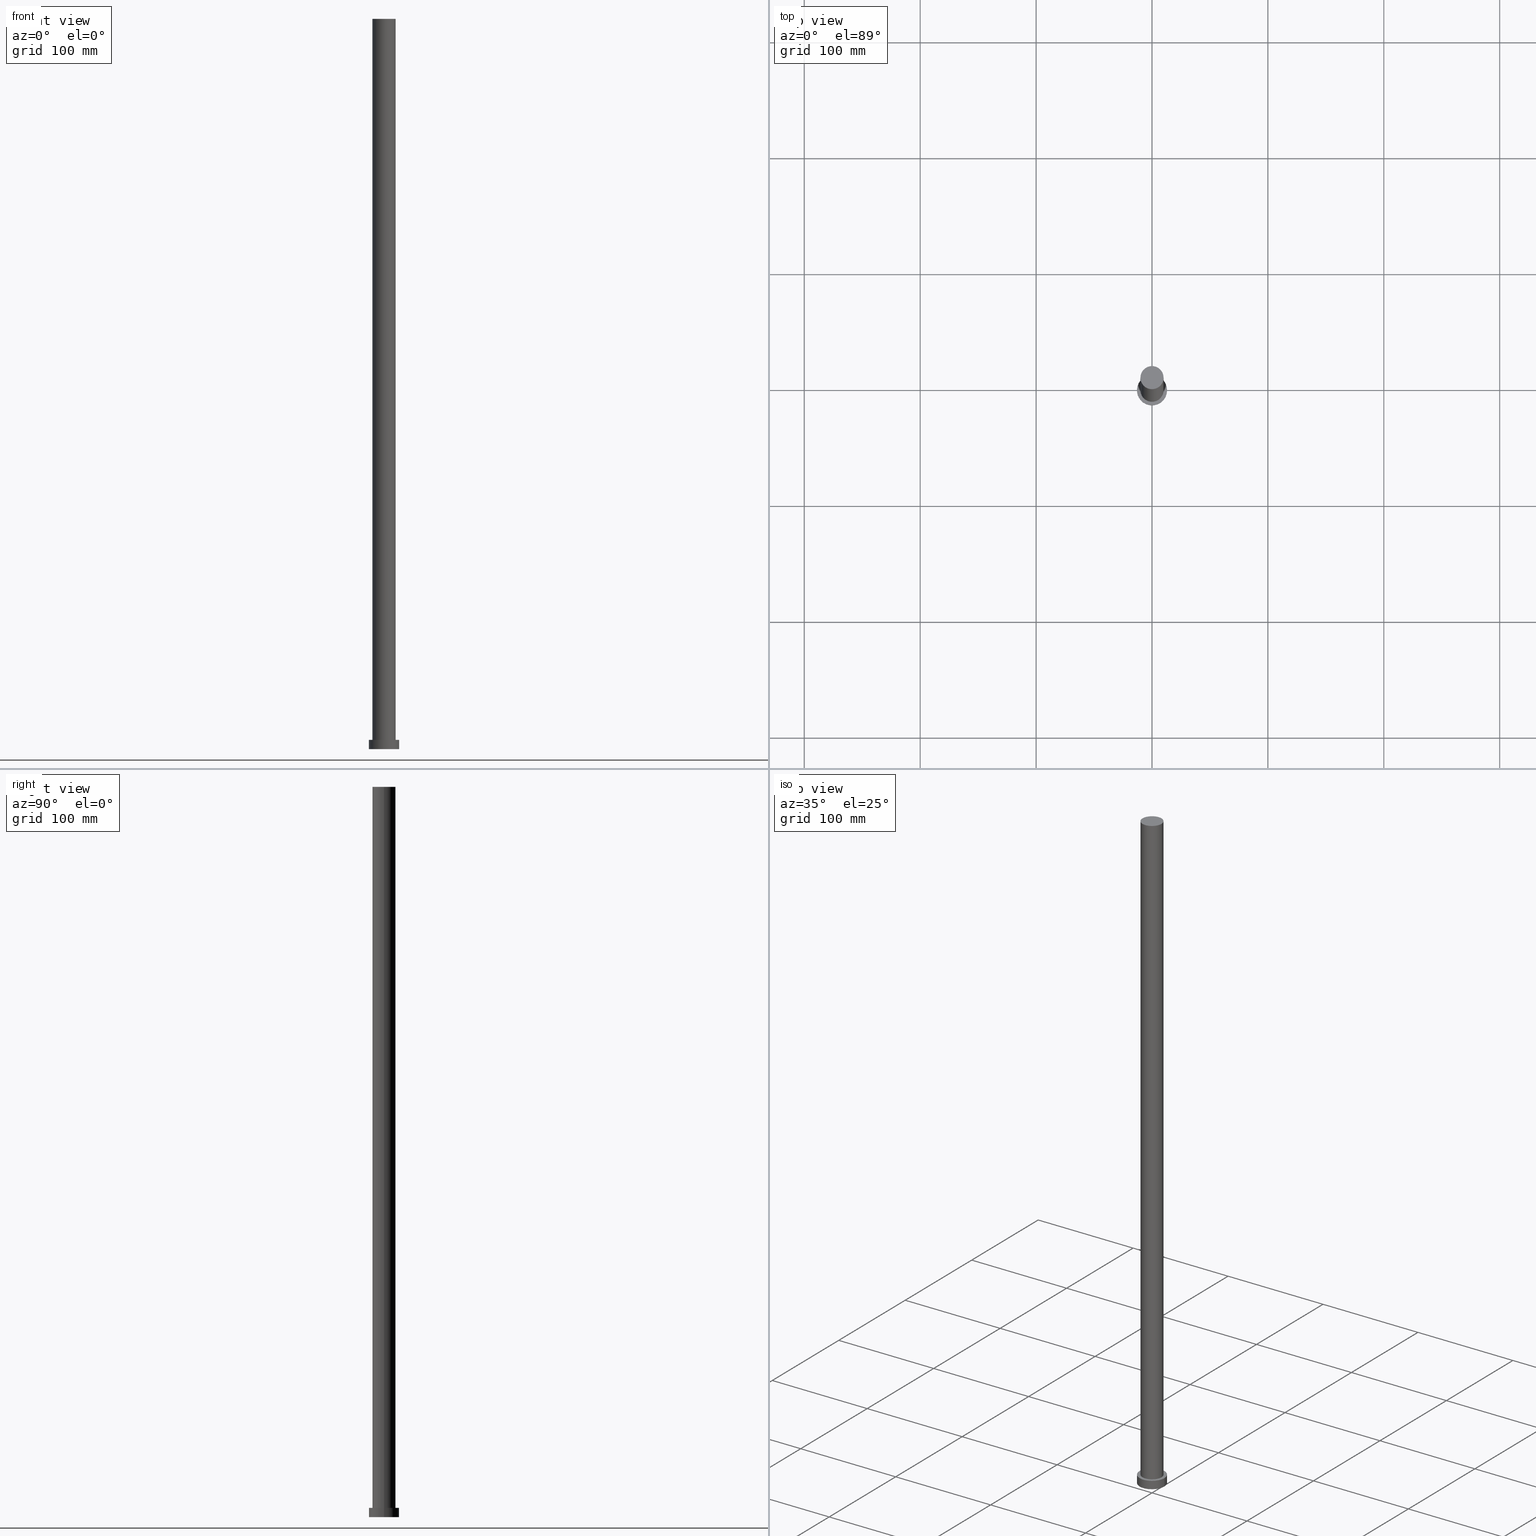
[diagram: canonical four-view strip — front | top / right | iso, engineering-drawing reading convention]
A machine part, canonical four-view strip (front | top / right | iso — engineering-drawing reading convention). The complete STEP part file that produces these views, byte-faithful:
ISO-10303-21;
HEADER;
FILE_DESCRIPTION (( 'STEP AP203' ),
    '1' );
FILE_NAME ('07cb.STEP',
    '2023-02-13T07:33:10',
    ( '' ),
    ( '' ),
    'SwSTEP 2.0',
    'SolidWorks 2019',
    '' );
FILE_SCHEMA (( 'CONFIG_CONTROL_DESIGN' ));
ENDSEC;

DATA;
#1 = FACE_OUTER_BOUND ( 'NONE', #211, .T. ) ;
#2 = PERSON_AND_ORGANIZATION ( #46, #255 ) ;
#3 = EDGE_CURVE ( 'NONE', #156, #189, #159, .T. ) ;
#4 = EDGE_LOOP ( 'NONE', ( #96, #117 ) ) ;
#5 = CIRCLE ( 'NONE', #190, 13.00000000000000178 ) ;
#6 = PERSON_AND_ORGANIZATION_ROLE ( 'creator' ) ;
#7 = CC_DESIGN_PERSON_AND_ORGANIZATION_ASSIGNMENT ( #98, #242, ( #210 ) ) ;
#8 = APPROVAL_DATE_TIME ( #37, #252 ) ;
#9 = DIRECTION ( 'NONE',  ( 1.000000000000000000, 0.000000000000000000, 0.000000000000000000 ) ) ;
#10 = PLANE ( 'NONE',  #198 ) ;
#11 = ADVANCED_FACE ( 'NONE', ( #60 ), #78, .T. ) ;
#12 = VECTOR ( 'NONE', #28, 1000.000000000000000 ) ;
#13 = CARTESIAN_POINT ( 'NONE',  ( 0.000000000000000000, 0.000000000000000000, 630.0000000000000000 ) ) ;
#14 = DATE_AND_TIME ( #171, #168 ) ;
#15 = ORIENTED_EDGE ( 'NONE', *, *, #87, .F. ) ;
#16 = LOCAL_TIME ( 8, 33, 10.00000000000000000, #51 ) ;
#17 = ORIENTED_EDGE ( 'NONE', *, *, #214, .F. ) ;
#18 = CC_DESIGN_PERSON_AND_ORGANIZATION_ASSIGNMENT ( #197, #158, ( #80 ) ) ;
#19 = DIRECTION ( 'NONE',  ( -0.000000000000000000, -0.000000000000000000, -1.000000000000000000 ) ) ;
#20 = ORIENTED_EDGE ( 'NONE', *, *, #57, .F. ) ;
#21 = MECHANICAL_CONTEXT ( 'NONE', #91, 'mechanical' ) ;
#22 = VERTEX_POINT ( 'NONE', #41 ) ;
#23 = LINE ( 'NONE', #100, #12 ) ;
#24 = CC_DESIGN_APPROVAL ( #196, ( #80 ) ) ;
#25 = SECURITY_CLASSIFICATION_LEVEL ( 'unclassified' ) ;
#26 = CARTESIAN_POINT ( 'NONE',  ( 0.000000000000000000, 0.000000000000000000, 630.0000000000000000 ) ) ;
#27 = APPROVAL_ROLE ( '' ) ;
#28 = DIRECTION ( 'NONE',  ( -0.000000000000000000, -0.000000000000000000, -1.000000000000000000 ) ) ;
#29 = CARTESIAN_POINT ( 'NONE',  ( 0.000000000000000000, 0.000000000000000000, 0.000000000000000000 ) ) ;
#30 = COORDINATED_UNIVERSAL_TIME_OFFSET ( 1, 0, .AHEAD. ) ;
#31 = CARTESIAN_POINT ( 'NONE',  ( -10.00000000000000000, 0.000000000000000000, 8.000000000000000000 ) ) ;
#32 =( GEOMETRIC_REPRESENTATION_CONTEXT ( 3 ) GLOBAL_UNCERTAINTY_ASSIGNED_CONTEXT ( ( #97 ) ) GLOBAL_UNIT_ASSIGNED_CONTEXT ( ( #222, #195, #82 ) ) REPRESENTATION_CONTEXT ( 'NONE', 'WORKASPACE' ) );
#33 = APPROVAL ( #209, 'NEUR�EN�' ) ;
#34 = APPLICATION_CONTEXT ( 'configuration controlled 3d designs of mechanical parts and assemblies' ) ;
#35 = DIRECTION ( 'NONE',  ( -0.000000000000000000, -0.000000000000000000, -1.000000000000000000 ) ) ;
#36 = DIRECTION ( 'NONE',  ( 0.000000000000000000, 0.000000000000000000, 1.000000000000000000 ) ) ;
#37 = DATE_AND_TIME ( #203, #204 ) ;
#38 = PERSON_AND_ORGANIZATION ( #46, #255 ) ;
#39 = CC_DESIGN_PERSON_AND_ORGANIZATION_ASSIGNMENT ( #2, #157, ( #111 ) ) ;
#40 = AXIS2_PLACEMENT_3D ( 'NONE', #128, #36, #220 ) ;
#41 = CARTESIAN_POINT ( 'NONE',  ( 13.00000000000000178, 1.592040838891559293E-15, 0.000000000000000000 ) ) ;
#42 = DIRECTION ( 'NONE',  ( 0.000000000000000000, 0.000000000000000000, 1.000000000000000000 ) ) ;
#43 = EDGE_LOOP ( 'NONE', ( #15, #17, #253, #93 ) ) ;
#44 = APPROVAL_PERSON_ORGANIZATION ( #38, #33, #188 ) ;
#45 = CARTESIAN_POINT ( 'NONE',  ( -10.00000000000000000, 0.000000000000000000, 630.0000000000000000 ) ) ;
#46 = PERSON ( 'NEUR�EN�', 'NEUR�EN�', 'NEUR�EN�', ('NEUR�EN�'), ('NEUR�EN�'), ('NEUR�EN�') ) ;
#47 = DATE_AND_TIME ( #101, #208 ) ;
#48 = ADVANCED_FACE ( 'NONE', ( #178 ), #61, .T. ) ;
#49 = CIRCLE ( 'NONE', #68, 13.00000000000000178 ) ;
#50 = PERSON_AND_ORGANIZATION ( #46, #255 ) ;
#51 = COORDINATED_UNIVERSAL_TIME_OFFSET ( 1, 0, .AHEAD. ) ;
#52 = DIRECTION ( 'NONE',  ( -0.000000000000000000, -0.000000000000000000, -1.000000000000000000 ) ) ;
#53 = LINE ( 'NONE', #202, #103 ) ;
#54 = AXIS2_PLACEMENT_3D ( 'NONE', #227, #55, #167 ) ;
#55 = DIRECTION ( 'NONE',  ( 0.000000000000000000, 0.000000000000000000, 1.000000000000000000 ) ) ;
#56 = ADVANCED_FACE ( 'NONE', ( #1 ), #94, .T. ) ;
#57 = EDGE_CURVE ( 'NONE', #254, #136, #95, .T. ) ;
#58 = ORIENTED_EDGE ( 'NONE', *, *, #3, .T. ) ;
#59 = EDGE_LOOP ( 'NONE', ( #73, #193 ) ) ;
#60 = FACE_OUTER_BOUND ( 'NONE', #43, .T. ) ;
#61 = PLANE ( 'NONE',  #146 ) ;
#62 = LOCAL_TIME ( 8, 33, 10.00000000000000000, #89 ) ;
#63 = EDGE_CURVE ( 'NONE', #189, #156, #228, .T. ) ;
#64 = DIRECTION ( 'NONE',  ( -0.000000000000000000, -0.000000000000000000, -1.000000000000000000 ) ) ;
#65 = AXIS2_PLACEMENT_3D ( 'NONE', #26, #102, #142 ) ;
#66 = FACE_BOUND ( 'NONE', #116, .T. ) ;
#67 = CYLINDRICAL_SURFACE ( 'NONE', #65, 10.00000000000000000 ) ;
#68 = AXIS2_PLACEMENT_3D ( 'NONE', #104, #180, #127 ) ;
#69 = CARTESIAN_POINT ( 'NONE',  ( 0.000000000000000000, 0.000000000000000000, 0.000000000000000000 ) ) ;
#70 = ADVANCED_FACE ( 'NONE', ( #66, #143 ), #10, .T. ) ;
#71 = PRODUCT_DEFINITION_SHAPE ( 'NONE', 'NONE',  #141 ) ;
#72 = DIRECTION ( 'NONE',  ( 0.000000000000000000, 0.000000000000000000, 1.000000000000000000 ) ) ;
#73 = ORIENTED_EDGE ( 'NONE', *, *, #214, .T. ) ;
#74 = ORIENTED_EDGE ( 'NONE', *, *, #90, .T. ) ;
#75 = VERTEX_POINT ( 'NONE', #226 ) ;
#76 = ORIENTED_EDGE ( 'NONE', *, *, #90, .F. ) ;
#77 = SHAPE_DEFINITION_REPRESENTATION ( #71, #133 ) ;
#78 = CYLINDRICAL_SURFACE ( 'NONE', #139, 13.00000000000000178 ) ;
#79 = APPROVAL_DATE_TIME ( #47, #196 ) ;
#80 = PRODUCT_DEFINITION_FORMATION_WITH_SPECIFIED_SOURCE ( 'LIBOVOLN�', '', #111, .NOT_KNOWN. ) ;
#81 = PERSON_AND_ORGANIZATION_ROLE ( 'creator' ) ;
#82 =( NAMED_UNIT ( * ) SI_UNIT ( $, .STERADIAN. ) SOLID_ANGLE_UNIT ( ) );
#83 = AXIS2_PLACEMENT_3D ( 'NONE', #122, #123, #140 ) ;
#84 = CARTESIAN_POINT ( 'NONE',  ( 0.000000000000000000, 0.000000000000000000, 0.000000000000000000 ) ) ;
#85 = FACE_OUTER_BOUND ( 'NONE', #177, .T. ) ;
#86 = DIRECTION ( 'NONE',  ( 0.000000000000000000, 0.000000000000000000, 1.000000000000000000 ) ) ;
#87 = EDGE_CURVE ( 'NONE', #173, #22, #53, .T. ) ;
#88 = DIRECTION ( 'NONE',  ( 0.000000000000000000, 0.000000000000000000, 1.000000000000000000 ) ) ;
#89 = COORDINATED_UNIVERSAL_TIME_OFFSET ( 1, 0, .AHEAD. ) ;
#90 = EDGE_CURVE ( 'NONE', #136, #254, #109, .T. ) ;
#91 = APPLICATION_CONTEXT ( 'configuration controlled 3d designs of mechanical parts and assemblies' ) ;
#92 = ORIENTED_EDGE ( 'NONE', *, *, #172, .T. ) ;
#93 = ORIENTED_EDGE ( 'NONE', *, *, #129, .T. ) ;
#94 = CYLINDRICAL_SURFACE ( 'NONE', #126, 13.00000000000000178 ) ;
#95 = CIRCLE ( 'NONE', #83, 10.00000000000000000 ) ;
#96 = ORIENTED_EDGE ( 'NONE', *, *, #129, .F. ) ;
#97 = UNCERTAINTY_MEASURE_WITH_UNIT (LENGTH_MEASURE( 1.000000000000000082E-05 ), #222, 'distance_accuracy_value', 'NONE');
#98 = PERSON_AND_ORGANIZATION ( #46, #255 ) ;
#99 = ORIENTED_EDGE ( 'NONE', *, *, #166, .T. ) ;
#100 = CARTESIAN_POINT ( 'NONE',  ( -13.00000000000000178, 0.000000000000000000, 8.000000000000000000 ) ) ;
#101 = CALENDAR_DATE ( 2023, 13, 2 ) ;
#102 = DIRECTION ( 'NONE',  ( -0.000000000000000000, -0.000000000000000000, -1.000000000000000000 ) ) ;
#103 = VECTOR ( 'NONE', #105, 1000.000000000000000 ) ;
#104 = CARTESIAN_POINT ( 'NONE',  ( 0.000000000000000000, 0.000000000000000000, 8.000000000000000000 ) ) ;
#105 = DIRECTION ( 'NONE',  ( -0.000000000000000000, -0.000000000000000000, -1.000000000000000000 ) ) ;
#106 = CYLINDRICAL_SURFACE ( 'NONE', #112, 10.00000000000000000 ) ;
#107 = EDGE_CURVE ( 'NONE', #22, #75, #5, .T. ) ;
#108 = FACE_OUTER_BOUND ( 'NONE', #4, .T. ) ;
#109 = CIRCLE ( 'NONE', #247, 10.00000000000000000 ) ;
#110 = CARTESIAN_POINT ( 'NONE',  ( 0.000000000000000000, 0.000000000000000000, 0.000000000000000000 ) ) ;
#111 = PRODUCT ( '07cb', '07cb', '', ( #21 ) ) ;
#112 = AXIS2_PLACEMENT_3D ( 'NONE', #245, #182, #219 ) ;
#113 = ORIENTED_EDGE ( 'NONE', *, *, #166, .F. ) ;
#114 = EDGE_LOOP ( 'NONE', ( #113, #76, #92, #115 ) ) ;
#115 = ORIENTED_EDGE ( 'NONE', *, *, #63, .T. ) ;
#116 = EDGE_LOOP ( 'NONE', ( #251, #174 ) ) ;
#117 = ORIENTED_EDGE ( 'NONE', *, *, #107, .F. ) ;
#118 = ADVANCED_FACE ( 'NONE', ( #108 ), #207, .F. ) ;
#119 = PERSON_AND_ORGANIZATION ( #46, #255 ) ;
#120 = COORDINATED_UNIVERSAL_TIME_OFFSET ( 1, 0, .AHEAD. ) ;
#121 = PERSON_AND_ORGANIZATION ( #46, #255 ) ;
#122 = CARTESIAN_POINT ( 'NONE',  ( 0.000000000000000000, 0.000000000000000000, 630.0000000000000000 ) ) ;
#123 = DIRECTION ( 'NONE',  ( 0.000000000000000000, 0.000000000000000000, 1.000000000000000000 ) ) ;
#124 = DATE_AND_TIME ( #221, #16 ) ;
#125 = CARTESIAN_POINT ( 'NONE',  ( 13.00000000000000178, 1.592040838891559293E-15, 8.000000000000000000 ) ) ;
#126 = AXIS2_PLACEMENT_3D ( 'NONE', #191, #64, #244 ) ;
#127 = DIRECTION ( 'NONE',  ( 1.000000000000000000, 0.000000000000000000, 0.000000000000000000 ) ) ;
#128 = CARTESIAN_POINT ( 'NONE',  ( 0.000000000000000000, 0.000000000000000000, 8.000000000000000000 ) ) ;
#129 = EDGE_CURVE ( 'NONE', #75, #22, #153, .T. ) ;
#130 = COORDINATED_UNIVERSAL_TIME_OFFSET ( 1, 0, .AHEAD. ) ;
#131 = DIRECTION ( 'NONE',  ( 1.000000000000000000, 0.000000000000000000, 0.000000000000000000 ) ) ;
#132 = VECTOR ( 'NONE', #52, 1000.000000000000000 ) ;
#133 = ADVANCED_BREP_SHAPE_REPRESENTATION ( '07cb', ( #224, #241 ), #32 ) ;
#134 = ORIENTED_EDGE ( 'NONE', *, *, #187, .F. ) ;
#135 = CIRCLE ( 'NONE', #54, 13.00000000000000178 ) ;
#136 = VERTEX_POINT ( 'NONE', #145 ) ;
#137 = ORIENTED_EDGE ( 'NONE', *, *, #172, .F. ) ;
#138 = CARTESIAN_POINT ( 'NONE',  ( 0.000000000000000000, 0.000000000000000000, 8.000000000000000000 ) ) ;
#139 = AXIS2_PLACEMENT_3D ( 'NONE', #138, #19, #235 ) ;
#140 = DIRECTION ( 'NONE',  ( 1.000000000000000000, 0.000000000000000000, 0.000000000000000000 ) ) ;
#141 = PRODUCT_DEFINITION ( 'NEZN�M�', '', #80, #192 ) ;
#142 = DIRECTION ( 'NONE',  ( -1.000000000000000000, 0.000000000000000000, 0.000000000000000000 ) ) ;
#143 = FACE_OUTER_BOUND ( 'NONE', #59, .T. ) ;
#144 = CARTESIAN_POINT ( 'NONE',  ( 10.00000000000000000, 1.224646799147353256E-15, 630.0000000000000000 ) ) ;
#145 = CARTESIAN_POINT ( 'NONE',  ( -10.00000000000000000, 0.000000000000000000, 630.0000000000000000 ) ) ;
#146 = AXIS2_PLACEMENT_3D ( 'NONE', #175, #42, #215 ) ;
#147 = LINE ( 'NONE', #144, #243 ) ;
#148 = VERTEX_POINT ( 'NONE', #185 ) ;
#149 = APPROVAL_PERSON_ORGANIZATION ( #50, #196, #27 ) ;
#150 = DATE_AND_TIME ( #248, #62 ) ;
#151 = DIRECTION ( 'NONE',  ( 0.000000000000000000, 0.000000000000000000, 1.000000000000000000 ) ) ;
#152 = CC_DESIGN_PERSON_AND_ORGANIZATION_ASSIGNMENT ( #121, #81, ( #80 ) ) ;
#153 = CIRCLE ( 'NONE', #169, 13.00000000000000178 ) ;
#154 = ORIENTED_EDGE ( 'NONE', *, *, #87, .T. ) ;
#155 = ORIENTED_EDGE ( 'NONE', *, *, #57, .T. ) ;
#156 = VERTEX_POINT ( 'NONE', #164 ) ;
#157 = PERSON_AND_ORGANIZATION_ROLE ( 'design_owner' ) ;
#158 = PERSON_AND_ORGANIZATION_ROLE ( 'design_supplier' ) ;
#159 = CIRCLE ( 'NONE', #232, 10.00000000000000000 ) ;
#160 = DIRECTION ( 'NONE',  ( 1.000000000000000000, 0.000000000000000000, -0.000000000000000000 ) ) ;
#161 = CC_DESIGN_APPROVAL ( #33, ( #210 ) ) ;
#162 = DATE_TIME_ROLE ( 'creation_date' ) ;
#163 = APPLICATION_PROTOCOL_DEFINITION ( 'international standard', 'config_control_design', 1994, #91 ) ;
#164 = CARTESIAN_POINT ( 'NONE',  ( 10.00000000000000000, 1.224646799147353256E-15, 8.000000000000000000 ) ) ;
#165 = DIRECTION ( 'NONE',  ( 1.000000000000000000, 0.000000000000000000, -0.000000000000000000 ) ) ;
#166 = EDGE_CURVE ( 'NONE', #254, #156, #147, .T. ) ;
#167 = DIRECTION ( 'NONE',  ( 1.000000000000000000, 0.000000000000000000, 0.000000000000000000 ) ) ;
#168 = LOCAL_TIME ( 8, 33, 10.00000000000000000, #120 ) ;
#169 = AXIS2_PLACEMENT_3D ( 'NONE', #84, #86, #229 ) ;
#170 = CC_DESIGN_APPROVAL ( #252, ( #141 ) ) ;
#171 = CALENDAR_DATE ( 2023, 13, 2 ) ;
#172 = EDGE_CURVE ( 'NONE', #136, #189, #217, .T. ) ;
#173 = VERTEX_POINT ( 'NONE', #125 ) ;
#174 = ORIENTED_EDGE ( 'NONE', *, *, #3, .F. ) ;
#175 = CARTESIAN_POINT ( 'NONE',  ( 0.000000000000000000, 0.000000000000000000, 630.0000000000000000 ) ) ;
#176 = APPROVAL_PERSON_ORGANIZATION ( #119, #252, #181 ) ;
#177 = EDGE_LOOP ( 'NONE', ( #20, #99, #58, #137 ) ) ;
#178 = FACE_OUTER_BOUND ( 'NONE', #179, .T. ) ;
#179 = EDGE_LOOP ( 'NONE', ( #74, #155 ) ) ;
#180 = DIRECTION ( 'NONE',  ( 0.000000000000000000, 0.000000000000000000, 1.000000000000000000 ) ) ;
#181 = APPROVAL_ROLE ( '' ) ;
#182 = DIRECTION ( 'NONE',  ( -0.000000000000000000, -0.000000000000000000, -1.000000000000000000 ) ) ;
#183 = EDGE_CURVE ( 'NONE', #173, #148, #135, .T. ) ;
#184 = PERSON_AND_ORGANIZATION ( #46, #255 ) ;
#185 = CARTESIAN_POINT ( 'NONE',  ( -13.00000000000000178, 0.000000000000000000, 8.000000000000000000 ) ) ;
#186 = CC_DESIGN_SECURITY_CLASSIFICATION ( #210, ( #80 ) ) ;
#187 = EDGE_CURVE ( 'NONE', #148, #75, #23, .T. ) ;
#188 = APPROVAL_ROLE ( '' ) ;
#189 = VERTEX_POINT ( 'NONE', #31 ) ;
#190 = AXIS2_PLACEMENT_3D ( 'NONE', #69, #151, #233 ) ;
#191 = CARTESIAN_POINT ( 'NONE',  ( 0.000000000000000000, 0.000000000000000000, 8.000000000000000000 ) ) ;
#192 = DESIGN_CONTEXT ( 'detailed design', #34, 'design' ) ;
#193 = ORIENTED_EDGE ( 'NONE', *, *, #183, .T. ) ;
#194 = APPROVAL_STATUS ( 'not_yet_approved' ) ;
#195 =( NAMED_UNIT ( * ) PLANE_ANGLE_UNIT ( ) SI_UNIT ( $, .RADIAN. ) );
#196 = APPROVAL ( #199, 'NEUR�EN�' ) ;
#197 = PERSON_AND_ORGANIZATION ( #46, #255 ) ;
#198 = AXIS2_PLACEMENT_3D ( 'NONE', #223, #200, #165 ) ;
#199 = APPROVAL_STATUS ( 'not_yet_approved' ) ;
#200 = DIRECTION ( 'NONE',  ( 0.000000000000000000, 0.000000000000000000, 1.000000000000000000 ) ) ;
#201 = CARTESIAN_POINT ( 'NONE',  ( 10.00000000000000000, 1.224646799147353256E-15, 630.0000000000000000 ) ) ;
#202 = CARTESIAN_POINT ( 'NONE',  ( 13.00000000000000178, 1.592040838891559293E-15, 8.000000000000000000 ) ) ;
#203 = CALENDAR_DATE ( 2023, 13, 2 ) ;
#204 = LOCAL_TIME ( 8, 33, 10.00000000000000000, #130 ) ;
#205 = FACE_OUTER_BOUND ( 'NONE', #114, .T. ) ;
#206 = CC_DESIGN_DATE_AND_TIME_ASSIGNMENT ( #124, #162, ( #141 ) ) ;
#207 = PLANE ( 'NONE',  #249 ) ;
#208 = LOCAL_TIME ( 8, 33, 10.00000000000000000, #30 ) ;
#209 = APPROVAL_STATUS ( 'not_yet_approved' ) ;
#210 = SECURITY_CLASSIFICATION ( '', '', #25 ) ;
#211 = EDGE_LOOP ( 'NONE', ( #234, #154, #236, #134 ) ) ;
#212 = APPROVAL_DATE_TIME ( #150, #33 ) ;
#213 = CARTESIAN_POINT ( 'NONE',  ( 0.000000000000000000, 0.000000000000000000, 8.000000000000000000 ) ) ;
#214 = EDGE_CURVE ( 'NONE', #148, #173, #49, .T. ) ;
#215 = DIRECTION ( 'NONE',  ( 1.000000000000000000, 0.000000000000000000, -0.000000000000000000 ) ) ;
#216 = CLOSED_SHELL ( 'NONE', ( #246, #56, #11, #70, #118, #237, #48 ) ) ;
#217 = LINE ( 'NONE', #45, #132 ) ;
#218 = CC_DESIGN_PERSON_AND_ORGANIZATION_ASSIGNMENT ( #184, #6, ( #141 ) ) ;
#219 = DIRECTION ( 'NONE',  ( -1.000000000000000000, 0.000000000000000000, 0.000000000000000000 ) ) ;
#220 = DIRECTION ( 'NONE',  ( 1.000000000000000000, 0.000000000000000000, 0.000000000000000000 ) ) ;
#221 = CALENDAR_DATE ( 2023, 13, 2 ) ;
#222 =( LENGTH_UNIT ( ) NAMED_UNIT ( * ) SI_UNIT ( .MILLI., .METRE. ) );
#223 = CARTESIAN_POINT ( 'NONE',  ( 0.000000000000000000, 0.000000000000000000, 8.000000000000000000 ) ) ;
#224 = MANIFOLD_SOLID_BREP ( 'P�idat vysunut�m3', #216 ) ;
#225 = DIRECTION ( 'NONE',  ( 0.000000000000000000, 0.000000000000000000, 1.000000000000000000 ) ) ;
#226 = CARTESIAN_POINT ( 'NONE',  ( -13.00000000000000178, 0.000000000000000000, 0.000000000000000000 ) ) ;
#227 = CARTESIAN_POINT ( 'NONE',  ( 0.000000000000000000, 0.000000000000000000, 8.000000000000000000 ) ) ;
#228 = CIRCLE ( 'NONE', #40, 10.00000000000000000 ) ;
#229 = DIRECTION ( 'NONE',  ( 1.000000000000000000, 0.000000000000000000, 0.000000000000000000 ) ) ;
#230 = CC_DESIGN_DATE_AND_TIME_ASSIGNMENT ( #14, #250, ( #210 ) ) ;
#231 = DIRECTION ( 'NONE',  ( 0.000000000000000000, 0.000000000000000000, 1.000000000000000000 ) ) ;
#232 = AXIS2_PLACEMENT_3D ( 'NONE', #213, #72, #238 ) ;
#233 = DIRECTION ( 'NONE',  ( 1.000000000000000000, 0.000000000000000000, 0.000000000000000000 ) ) ;
#234 = ORIENTED_EDGE ( 'NONE', *, *, #183, .F. ) ;
#235 = DIRECTION ( 'NONE',  ( -1.000000000000000000, 0.000000000000000000, 0.000000000000000000 ) ) ;
#236 = ORIENTED_EDGE ( 'NONE', *, *, #107, .T. ) ;
#237 = ADVANCED_FACE ( 'NONE', ( #205 ), #106, .T. ) ;
#238 = DIRECTION ( 'NONE',  ( 1.000000000000000000, 0.000000000000000000, 0.000000000000000000 ) ) ;
#239 = APPLICATION_PROTOCOL_DEFINITION ( 'international standard', 'config_control_design', 1994, #34 ) ;
#240 = PRODUCT_RELATED_PRODUCT_CATEGORY ( 'detail', '', ( #111 ) ) ;
#241 = AXIS2_PLACEMENT_3D ( 'NONE', #29, #225, #9 ) ;
#242 = PERSON_AND_ORGANIZATION_ROLE ( 'classification_officer' ) ;
#243 = VECTOR ( 'NONE', #35, 1000.000000000000000 ) ;
#244 = DIRECTION ( 'NONE',  ( -1.000000000000000000, 0.000000000000000000, 0.000000000000000000 ) ) ;
#245 = CARTESIAN_POINT ( 'NONE',  ( 0.000000000000000000, 0.000000000000000000, 630.0000000000000000 ) ) ;
#246 = ADVANCED_FACE ( 'NONE', ( #85 ), #67, .T. ) ;
#247 = AXIS2_PLACEMENT_3D ( 'NONE', #13, #231, #131 ) ;
#248 = CALENDAR_DATE ( 2023, 13, 2 ) ;
#249 = AXIS2_PLACEMENT_3D ( 'NONE', #110, #88, #160 ) ;
#250 = DATE_TIME_ROLE ( 'classification_date' ) ;
#251 = ORIENTED_EDGE ( 'NONE', *, *, #63, .F. ) ;
#252 = APPROVAL ( #194, 'NEUR�EN�' ) ;
#253 = ORIENTED_EDGE ( 'NONE', *, *, #187, .T. ) ;
#254 = VERTEX_POINT ( 'NONE', #201 ) ;
#255 = ORGANIZATION ( 'NEUR�EN�', 'NEUR�EN�', '' ) ;
ENDSEC;
END-ISO-10303-21;
